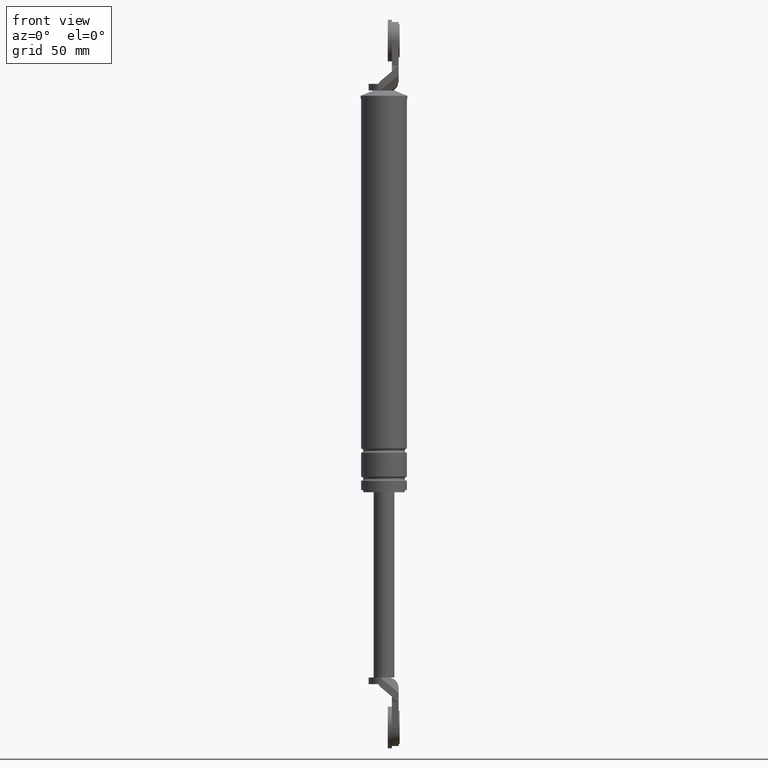
[diagram: clean part render]
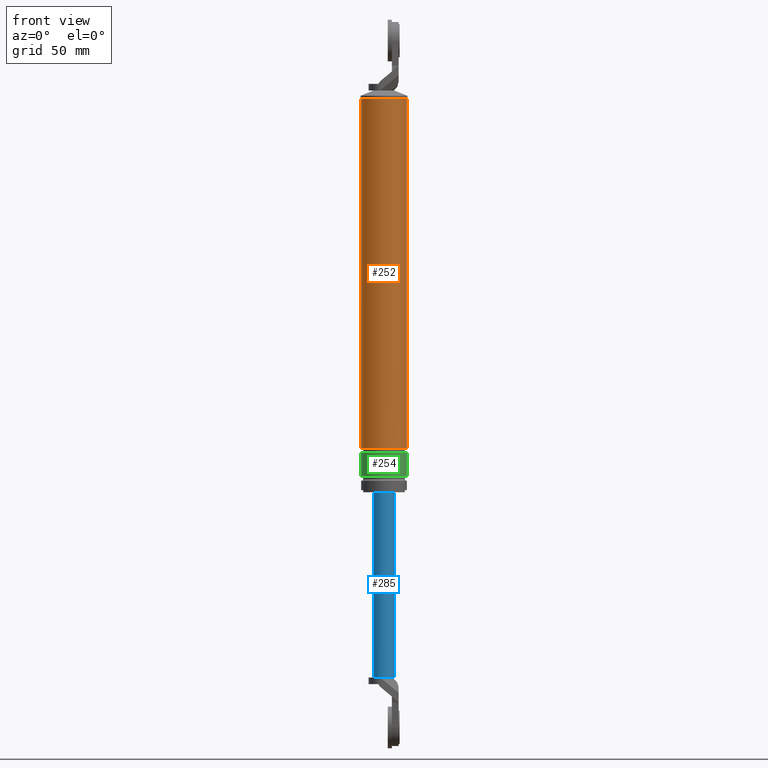
[diagram: same view with three faces highlighted in distinct colors, each labeled with its STEP entity id]
A machine part, front view with three faces highlighted in distinct colors.
Their STEP definitions:

[orange] entity #252 — the highlighted cylindrical surface (edge-blend (fillet) strip) has radius 11 mm, axis along (0, 0, 1).
#252=ADVANCED_FACE('',(#775),#774,.T.);
#774=CYLINDRICAL_SURFACE('',#1531,1.10000000000E+001);
#775=FACE_OUTER_BOUND('',#1532,.T.);
#1528=CARTESIAN_POINT('',(0.00000000000E+000,3.58204186421E-014,0.00000000000E+000));
#1529=DIRECTION('',(-0.00000000000E+000,-0.00000000000E+000,1.00000000000E+000));
#1530=DIRECTION('',(1.00000000000E+000,0.00000000000E+000,0.00000000000E+000));
#1531=AXIS2_PLACEMENT_3D('',#1528,#1529,#1530);
#1532=EDGE_LOOP('',(#1986,#1987,#1988,#1989));
#1986=ORIENTED_EDGE('',*,*,#2274,.F.);
#1987=ORIENTED_EDGE('',*,*,#2277,.T.);
#1988=ORIENTED_EDGE('',*,*,#2214,.T.);
#1989=ORIENTED_EDGE('',*,*,#2278,.F.);
#2214=EDGE_CURVE('',#2736,#2737,#2738,.T.);
#2274=EDGE_CURVE('',#3099,#3098,#3132,.T.);
#2277=EDGE_CURVE('',#3099,#2736,#3150,.T.);
#2278=EDGE_CURVE('',#3098,#2737,#3156,.T.);
#2736=VERTEX_POINT('',#3916);
#2737=VERTEX_POINT('',#3917);
#2738=CIRCLE('',#3921,1.10000000000E+001);
#3098=VERTEX_POINT('',#4137);
#3099=VERTEX_POINT('',#4138);
#3132=CIRCLE('',#4166,1.10000000000E+001);
#3150=(BOUNDED_CURVE() B_SPLINE_CURVE(1,(#4171,#4172),.UNSPECIFIED.,.F.,.F.) B_SPLINE_CURVE_WITH_KNOTS((2,2),(5.31914895400E-002,9.46808510809E-001),.UNSPECIFIED.) CURVE() GEOMETRIC_REPRESENTATION_ITEM() RATIONAL_B_SPLINE_CURVE((1.00000000000E+000,1.00000000000E+000)) REPRESENTATION_ITEM('') );
#3156=(BOUNDED_CURVE() B_SPLINE_CURVE(1,(#4173,#4174),.UNSPECIFIED.,.F.,.F.) B_SPLINE_CURVE_WITH_KNOTS((2,2),(5.31914893617E-002,9.46808510638E-001),.UNSPECIFIED.) CURVE() GEOMETRIC_REPRESENTATION_ITEM() RATIONAL_B_SPLINE_CURVE((7.50000000000E-001,7.50000000000E-001)) REPRESENTATION_ITEM('') );
#3916=CARTESIAN_POINT('',(1.10000000000E+001,3.61192557345E-014,8.49999850000E+001));
#3917=CARTESIAN_POINT('',(-1.10000000000E+001,3.58204186421E-014,8.49999850000E+001));
#3918=CARTESIAN_POINT('',(0.00000000000E+000,3.58204186421E-014,8.49999850000E+001));
#3919=DIRECTION('',(-0.00000000000E+000,0.00000000000E+000,-1.00000000000E+000));
#3920=DIRECTION('',(-1.00000000000E+000,-1.22460635382E-016,0.00000000000E+000));
#3921=AXIS2_PLACEMENT_3D('',#3918,#3919,#3920);
#4137=CARTESIAN_POINT('',(-1.10000000000E+001,3.58204186421E-014,-8.30000150000E+001));
#4138=CARTESIAN_POINT('',(1.10000000000E+001,3.61192557345E-014,-8.30000150000E+001));
#4163=CARTESIAN_POINT('',(0.00000000000E+000,3.58204186421E-014,-8.30000150000E+001));
#4164=DIRECTION('',(-0.00000000000E+000,0.00000000000E+000,-1.00000000000E+000));
#4165=DIRECTION('',(-1.00000000000E+000,-1.22460635382E-016,0.00000000000E+000));
#4166=AXIS2_PLACEMENT_3D('',#4163,#4164,#4165);
#4171=CARTESIAN_POINT('',(1.10000000000E+001,3.58204186421E-014,-8.30000149665E+001));
#4172=CARTESIAN_POINT('',(1.10000000000E+001,3.58204186421E-014,8.49999850321E+001));
#4173=CARTESIAN_POINT('',(-1.10000000000E+001,3.55271367880E-014,-8.30000150000E+001));
#4174=CARTESIAN_POINT('',(-1.10000000000E+001,3.55271367880E-014,8.49999850000E+001));

[blue] entity #285 — the highlighted cylindrical surface (edge-blend (fillet) strip) has radius 5 mm, axis along (0, 0, 1).
#285=ADVANCED_FACE('',(#1107),#1106,.T.);
#1106=CYLINDRICAL_SURFACE('',#1760,5.00000000000E+000);
#1107=FACE_OUTER_BOUND('',#1761,.T.);
#1757=CARTESIAN_POINT('',(0.00000000000E+000,3.58204186421E-014,0.00000000000E+000));
#1758=DIRECTION('',(-0.00000000000E+000,-0.00000000000E+000,1.00000000000E+000));
#1759=DIRECTION('',(1.00000000000E+000,0.00000000000E+000,0.00000000000E+000));
#1760=AXIS2_PLACEMENT_3D('',#1757,#1758,#1759);
#1761=EDGE_LOOP('',(#2153,#2154,#2155,#2156,#2157));
#2153=ORIENTED_EDGE('',*,*,#2341,.F.);
#2154=ORIENTED_EDGE('',*,*,#2339,.F.);
#2155=ORIENTED_EDGE('',*,*,#2354,.T.);
#2156=ORIENTED_EDGE('',*,*,#2349,.T.);
#2157=ORIENTED_EDGE('',*,*,#2355,.F.);
#2339=EDGE_CURVE('',#3556,#3543,#3563,.T.);
#2341=EDGE_CURVE('',#3543,#3575,#3576,.T.);
#2349=EDGE_CURVE('',#3626,#3627,#3628,.T.);
#2354=EDGE_CURVE('',#3556,#3626,#3658,.T.);
#2355=EDGE_CURVE('',#3575,#3627,#3664,.T.);
#3543=VERTEX_POINT('',#4392);
#3556=VERTEX_POINT('',#4400);
#3563=CIRCLE('',#4408,5.00000000000E+000);
#3575=VERTEX_POINT('',#4412);
#3576=CIRCLE('',#4416,5.00000000000E+000);
#3626=VERTEX_POINT('',#4444);
#3627=VERTEX_POINT('',#4445);
#3628=CIRCLE('',#4449,5.00000000000E+000);
#3658=(BOUNDED_CURVE() B_SPLINE_CURVE(1,(#4462,#4463),.UNSPECIFIED.,.F.,.F.) B_SPLINE_CURVE_WITH_KNOTS((2,2),(8.33333332085E-002,9.16666666563E-001),.UNSPECIFIED.) CURVE() GEOMETRIC_REPRESENTATION_ITEM() RATIONAL_B_SPLINE_CURVE((1.00000000000E+000,1.00000000000E+000)) REPRESENTATION_ITEM('') );
#3664=(BOUNDED_CURVE() B_SPLINE_CURVE(1,(#4464,#4465),.UNSPECIFIED.,.F.,.F.) B_SPLINE_CURVE_WITH_KNOTS((2,2),(8.33333333333E-002,9.16666666667E-001),.UNSPECIFIED.) CURVE() GEOMETRIC_REPRESENTATION_ITEM() RATIONAL_B_SPLINE_CURVE((7.50000000000E-001,7.50000000000E-001)) REPRESENTATION_ITEM('') );
#4392=CARTESIAN_POINT('',(2.00000000000E+000,-4.58257569496E+000,-1.93000015000E+002));
#4400=CARTESIAN_POINT('',(5.00000000000E+000,-1.00793243772E-011,-1.93000015000E+002));
#4405=CARTESIAN_POINT('',(0.00000000000E+000,3.58204186421E-014,-1.93000015000E+002));
#4406=DIRECTION('',(0.00000000000E+000,0.00000000000E+000,-1.00000000000E+000));
#4407=DIRECTION('',(4.00000000000E-001,9.16515138991E-001,0.00000000000E+000));
#4408=AXIS2_PLACEMENT_3D('',#4405,#4406,#4407);
#4412=CARTESIAN_POINT('',(-5.00000000000E+000,8.97827334275E-007,-1.93000015000E+002));
#4413=CARTESIAN_POINT('',(0.00000000000E+000,3.58204186421E-014,-1.93000015000E+002));
#4414=DIRECTION('',(0.00000000000E+000,0.00000000000E+000,-1.00000000000E+000));
#4415=DIRECTION('',(1.00000000000E+000,-0.00000000000E+000,-0.00000000000E+000));
#4416=AXIS2_PLACEMENT_3D('',#4413,#4414,#4415);
#4444=CARTESIAN_POINT('',(5.00000000000E+000,3.58231962612E-014,-1.04000015000E+002));
#4445=CARTESIAN_POINT('',(-5.00000000000E+000,3.58204186421E-014,-1.04000015000E+002));
#4446=CARTESIAN_POINT('',(0.00000000000E+000,3.58204186421E-014,-1.04000015000E+002));
#4447=DIRECTION('',(-0.00000000000E+000,0.00000000000E+000,-1.00000000000E+000));
#4448=DIRECTION('',(-1.00000000000E+000,-1.22460635382E-016,0.00000000000E+000));
#4449=AXIS2_PLACEMENT_3D('',#4446,#4447,#4448);
#4462=CARTESIAN_POINT('',(5.00000000000E+000,3.58204186421E-014,-1.93000015013E+002));
#4463=CARTESIAN_POINT('',(5.00000000000E+000,3.58204186421E-014,-1.04000015011E+002));
#4464=CARTESIAN_POINT('',(-5.00000000000E+000,3.55271367880E-014,-1.93000015000E+002));
#4465=CARTESIAN_POINT('',(-5.00000000000E+000,3.55271367880E-014,-1.04000015000E+002));

[green] entity #254 — the highlighted cylindrical surface (edge-blend (fillet) strip) has radius 11 mm, axis along (0, 0, 1).
#254=ADVANCED_FACE('',(#795),#794,.T.);
#794=CYLINDRICAL_SURFACE('',#1541,1.10000000000E+001);
#795=FACE_OUTER_BOUND('',#1542,.T.);
#1538=CARTESIAN_POINT('',(0.00000000000E+000,3.58204186421E-014,0.00000000000E+000));
#1539=DIRECTION('',(-0.00000000000E+000,-0.00000000000E+000,1.00000000000E+000));
#1540=DIRECTION('',(1.00000000000E+000,0.00000000000E+000,0.00000000000E+000));
#1541=AXIS2_PLACEMENT_3D('',#1538,#1539,#1540);
#1542=EDGE_LOOP('',(#1994,#1995,#1996,#1997));
#1994=ORIENTED_EDGE('',*,*,#2268,.F.);
#1995=ORIENTED_EDGE('',*,*,#2279,.T.);
#1996=ORIENTED_EDGE('',*,*,#2273,.T.);
#1997=ORIENTED_EDGE('',*,*,#2280,.F.);
#2268=EDGE_CURVE('',#3073,#3072,#3092,.T.);
#2273=EDGE_CURVE('',#3106,#3113,#3126,.T.);
#2279=EDGE_CURVE('',#3073,#3106,#3162,.T.);
#2280=EDGE_CURVE('',#3072,#3113,#3168,.T.);
#3072=VERTEX_POINT('',#4117);
#3073=VERTEX_POINT('',#4118);
#3092=CIRCLE('',#4136,1.10000000000E+001);
#3106=VERTEX_POINT('',#4143);
#3113=VERTEX_POINT('',#4149);
#3126=CIRCLE('',#4162,1.10000000000E+001);
#3162=(BOUNDED_CURVE() B_SPLINE_CURVE(1,(#4175,#4176),.UNSPECIFIED.,.F.,.F.) B_SPLINE_CURVE_WITH_KNOTS((2,2),(8.33333343261E-002,9.16666667006E-001),.UNSPECIFIED.) CURVE() GEOMETRIC_REPRESENTATION_ITEM() RATIONAL_B_SPLINE_CURVE((1.00000000000E+000,1.00000000000E+000)) REPRESENTATION_ITEM('') );
#3168=(BOUNDED_CURVE() B_SPLINE_CURVE(1,(#4177,#4178),.UNSPECIFIED.,.F.,.F.) B_SPLINE_CURVE_WITH_KNOTS((2,2),(8.33333333333E-002,9.16666666667E-001),.UNSPECIFIED.) CURVE() GEOMETRIC_REPRESENTATION_ITEM() RATIONAL_B_SPLINE_CURVE((7.50000000000E-001,7.50000000000E-001)) REPRESENTATION_ITEM('') );
#4117=CARTESIAN_POINT('',(-1.10000000000E+001,3.58204186421E-014,-9.65000150000E+001));
#4118=CARTESIAN_POINT('',(1.10000000000E+001,3.61192557345E-014,-9.65000150000E+001));
#4133=CARTESIAN_POINT('',(0.00000000000E+000,3.58204186421E-014,-9.65000150000E+001));
#4134=DIRECTION('',(-0.00000000000E+000,0.00000000000E+000,-1.00000000000E+000));
#4135=DIRECTION('',(-1.00000000000E+000,-1.22460635382E-016,0.00000000000E+000));
#4136=AXIS2_PLACEMENT_3D('',#4133,#4134,#4135);
#4143=CARTESIAN_POINT('',(1.10000000000E+001,3.61192557345E-014,-8.50000150000E+001));
#4149=CARTESIAN_POINT('',(-1.10000000000E+001,3.58204186421E-014,-8.50000150000E+001));
#4159=CARTESIAN_POINT('',(0.00000000000E+000,3.58204186421E-014,-8.50000150000E+001));
#4160=DIRECTION('',(-0.00000000000E+000,0.00000000000E+000,-1.00000000000E+000));
#4161=DIRECTION('',(-1.00000000000E+000,-1.22460635382E-016,0.00000000000E+000));
#4162=AXIS2_PLACEMENT_3D('',#4159,#4160,#4161);
#4175=CARTESIAN_POINT('',(1.10000000000E+001,3.58204186421E-014,-9.65000149863E+001));
#4176=CARTESIAN_POINT('',(1.10000000000E+001,3.58204186421E-014,-8.50000149953E+001));
#4177=CARTESIAN_POINT('',(-1.10000000000E+001,3.55271367880E-014,-9.65000150000E+001));
#4178=CARTESIAN_POINT('',(-1.10000000000E+001,3.55271367880E-014,-8.50000150000E+001));